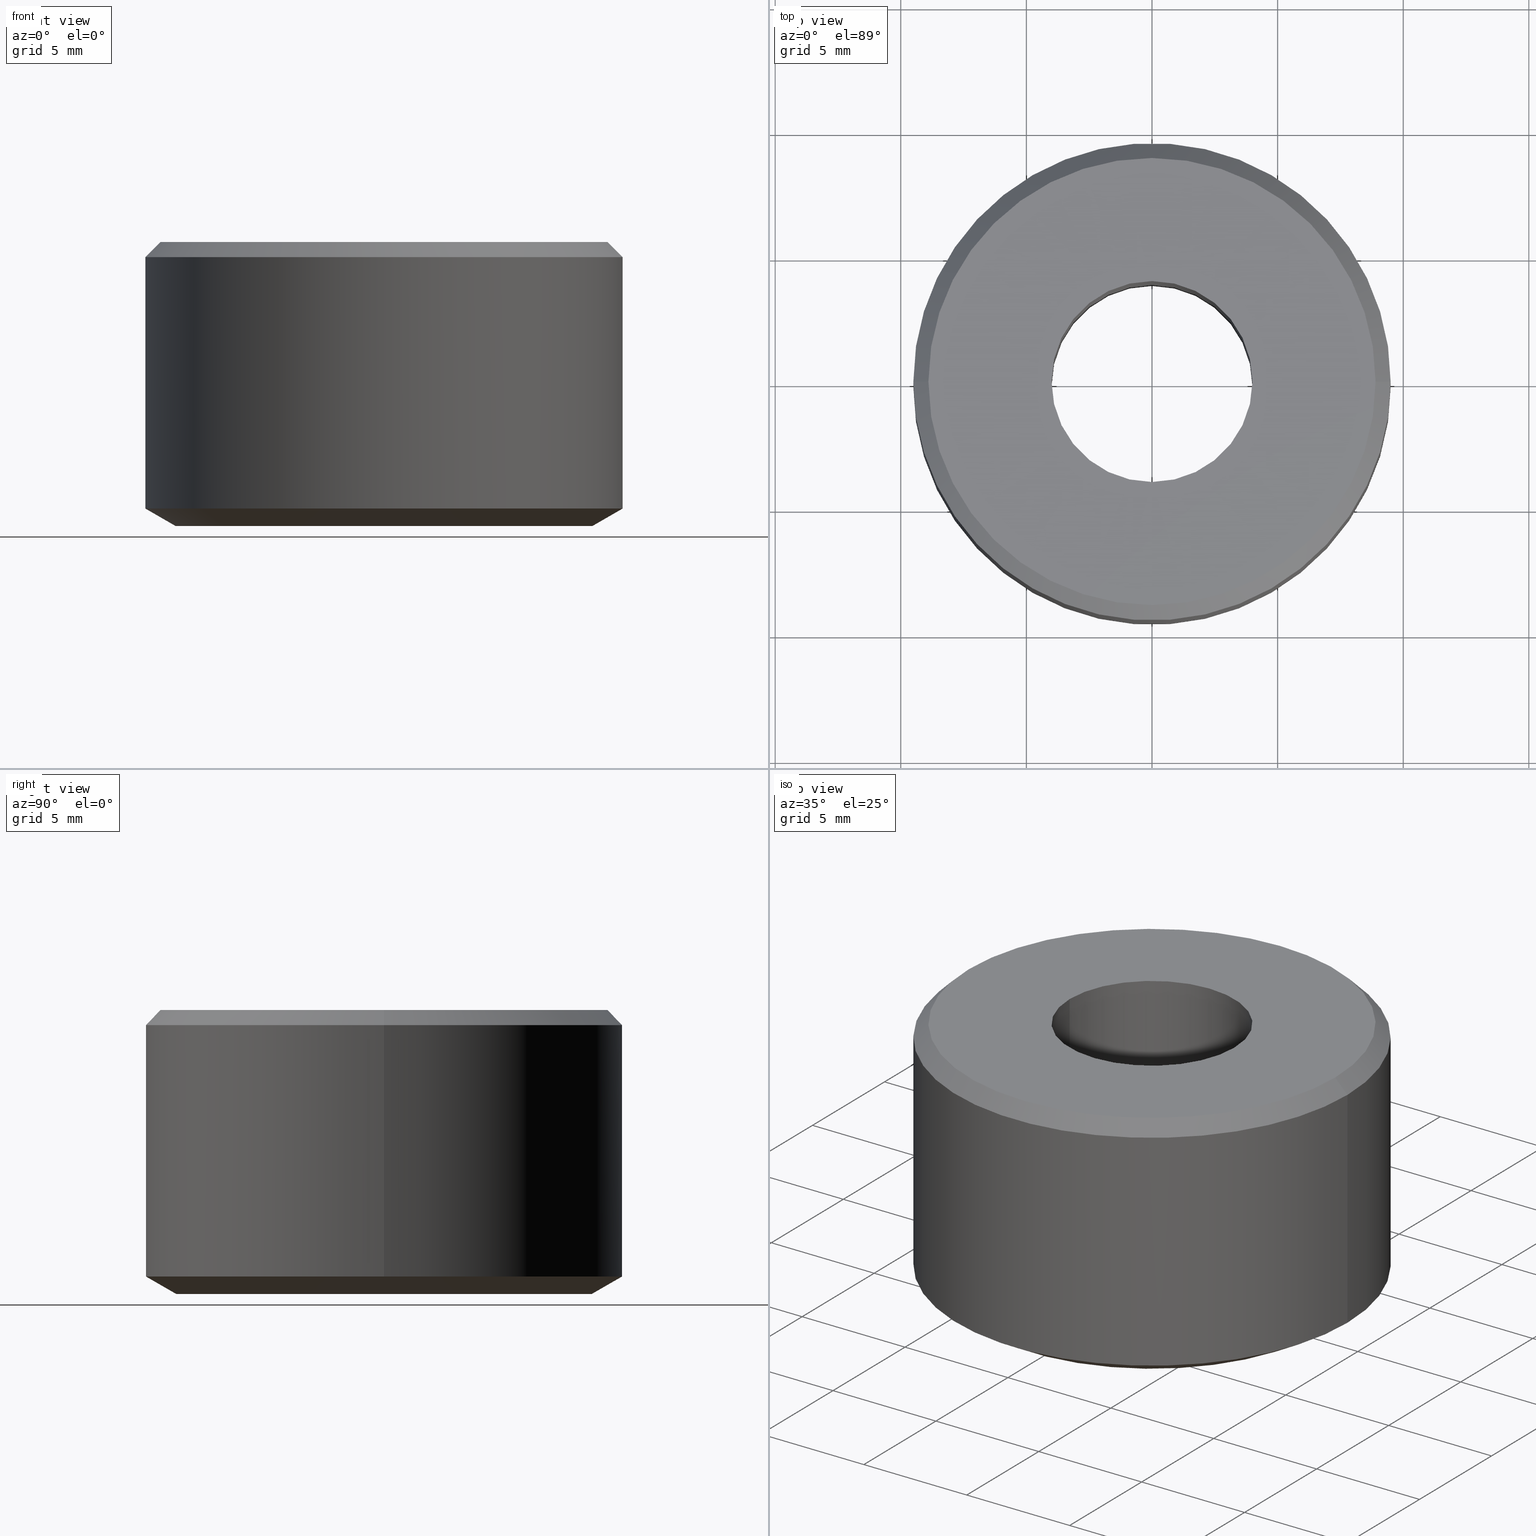
[diagram: canonical four-view strip — front | top / right | iso, engineering-drawing reading convention]
A machine part, canonical four-view strip (front | top / right | iso — engineering-drawing reading convention). The complete STEP part file that produces these views, byte-faithful:
ISO-10303-21;
HEADER;
FILE_DESCRIPTION (( 'STEP AP203' ),
    '1' );
FILE_NAME ('UM ER 11 HEX.STEP',
    '2019-04-22T06:55:22',
    ( '' ),
    ( '' ),
    'SwSTEP 2.0',
    'SolidWorks 2014',
    '' );
FILE_SCHEMA (( 'CONFIG_CONTROL_DESIGN' ));
ENDSEC;

DATA;
#1 = DIRECTION ( 'NONE',  ( 0.8660254037844379300, 0.0000000000000000000, 0.5000000000000011100 ) ) ;
#2 = EDGE_LOOP ( 'NONE', ( #124, #46 ) ) ;
#3 = EDGE_LOOP ( 'NONE', ( #123, #69, #293, #106 ) ) ;
#4 = APPROVAL_ROLE ( '' ) ;
#5 = FACE_OUTER_BOUND ( 'NONE', #291, .T. ) ;
#6 = CALENDAR_DATE ( 2019, 22, 4 ) ;
#7 = PERSON_AND_ORGANIZATION_ROLE ( 'design_supplier' ) ;
#8 = VERTEX_POINT ( 'NONE', #235 ) ;
#9 = VERTEX_POINT ( 'NONE', #67 ) ;
#10 = CARTESIAN_POINT ( 'NONE',  ( 0.0000000000000000000, 0.0000000000000000000, 0.6928203230271989800 ) ) ;
#11 = UNCERTAINTY_MEASURE_WITH_UNIT (LENGTH_MEASURE( 1.000000000000000100E-005 ), #279, 'distance_accuracy_value', 'NONE');
#12 = CC_DESIGN_PERSON_AND_ORGANIZATION_ASSIGNMENT ( #249, #92, ( #317 ) ) ;
#13 = CIRCLE ( 'NONE', #83, 8.900000000000249000 ) ;
#14 = ORIENTED_EDGE ( 'NONE', *, *, #114, .T. ) ;
#15 = AXIS2_PLACEMENT_3D ( 'NONE', #348, #104, #188 ) ;
#16 = ORIENTED_EDGE ( 'NONE', *, *, #230, .F. ) ;
#17 = ORIENTED_EDGE ( 'NONE', *, *, #301, .F. ) ;
#18 = DATE_AND_TIME ( #86, #171 ) ;
#19 = ORIENTED_EDGE ( 'NONE', *, *, #78, .F. ) ;
#20 = PRODUCT_DEFINITION ( 'UNKNOWN', '', #309, #325 ) ;
#21 = DIRECTION ( 'NONE',  ( 1.000000000000000000, 0.0000000000000000000, 0.0000000000000000000 ) ) ;
#22 = LINE ( 'NONE', #310, #302 ) ;
#23 = EDGE_CURVE ( 'NONE', #284, #342, #277, .T. ) ;
#24 = DIRECTION ( 'NONE',  ( -0.0000000000000000000, -0.0000000000000000000, 1.000000000000000000 ) ) ;
#25 = CC_DESIGN_APPROVAL ( #262, ( #20 ) ) ;
#26 = DATE_TIME_ROLE ( 'creation_date' ) ;
#27 = CARTESIAN_POINT ( 'NONE',  ( 0.0000000000000000000, 0.0000000000000000000, 10.69999999999993200 ) ) ;
#28 = APPROVAL_DATE_TIME ( #93, #262 ) ;
#29 = APPROVAL_ROLE ( '' ) ;
#30 = ADVANCED_FACE ( 'NONE', ( #128 ), #207, .T. ) ;
#31 = ORIENTED_EDGE ( 'NONE', *, *, #117, .T. ) ;
#32 = AXIS2_PLACEMENT_3D ( 'NONE', #145, #24, #48 ) ;
#33 = DIRECTION ( 'NONE',  ( 1.000000000000000000, 0.0000000000000000000, 0.0000000000000000000 ) ) ;
#34 = CIRCLE ( 'NONE', #43, 8.300000000000153500 ) ;
#35 = AXIS2_PLACEMENT_3D ( 'NONE', #333, #306, #204 ) ;
#36 = CONICAL_SURFACE ( 'NONE', #185, 9.500000000000008900, 0.7853981633974468400 ) ;
#37 = DIRECTION ( 'NONE',  ( -0.0000000000000000000, -0.0000000000000000000, 1.000000000000000000 ) ) ;
#38 = EDGE_CURVE ( 'NONE', #9, #276, #269, .T. ) ;
#39 = VERTEX_POINT ( 'NONE', #250 ) ;
#40 = VERTEX_POINT ( 'NONE', #340 ) ;
#41 = DIRECTION ( 'NONE',  ( -0.0000000000000000000, -0.0000000000000000000, 1.000000000000000000 ) ) ;
#42 = CONICAL_SURFACE ( 'NONE', #32, 9.500000000000008900, 1.047197551196596500 ) ;
#43 = AXIS2_PLACEMENT_3D ( 'NONE', #112, #137, #212 ) ;
#44 = DIRECTION ( 'NONE',  ( -1.000000000000000000, 0.0000000000000000000, 0.0000000000000000000 ) ) ;
#45 = CARTESIAN_POINT ( 'NONE',  ( -9.500000000000008900, 0.0000000000000000000, 10.69999999999993200 ) ) ;
#46 = ORIENTED_EDGE ( 'NONE', *, *, #245, .F. ) ;
#47 = EDGE_LOOP ( 'NONE', ( #108, #127, #59, #84 ) ) ;
#48 = DIRECTION ( 'NONE',  ( 1.000000000000000000, 0.0000000000000000000, 0.0000000000000000000 ) ) ;
#49 = LINE ( 'NONE', #326, #314 ) ;
#50 = DIRECTION ( 'NONE',  ( 1.000000000000000000, 0.0000000000000000000, 0.0000000000000000000 ) ) ;
#51 = EDGE_CURVE ( 'NONE', #39, #9, #344, .T. ) ;
#52 = ADVANCED_FACE ( 'NONE', ( #151 ), #329, .T. ) ;
#53 =( NAMED_UNIT ( * ) PLANE_ANGLE_UNIT ( ) SI_UNIT ( $, .RADIAN. ) );
#54 = CIRCLE ( 'NONE', #149, 4.000000000000000000 ) ;
#55 = APPROVAL ( #266, 'UNSPECIFIED' ) ;
#56 = CALENDAR_DATE ( 2019, 22, 4 ) ;
#57 = AXIS2_PLACEMENT_3D ( 'NONE', #122, #186, #98 ) ;
#58 = CARTESIAN_POINT ( 'NONE',  ( 9.500000000000008900, 0.0000000000000000000, 10.69999999999993200 ) ) ;
#59 = ORIENTED_EDGE ( 'NONE', *, *, #110, .T. ) ;
#60 = CIRCLE ( 'NONE', #103, 9.500000000000008900 ) ;
#61 = DATE_AND_TIME ( #141, #209 ) ;
#62 = AXIS2_PLACEMENT_3D ( 'NONE', #72, #136, #176 ) ;
#63 = PRODUCT_RELATED_PRODUCT_CATEGORY ( 'detail', '', ( #317 ) ) ;
#64 = ORIENTED_EDGE ( 'NONE', *, *, #308, .F. ) ;
#65 = DATE_TIME_ROLE ( 'classification_date' ) ;
#66 = VECTOR ( 'NONE', #237, 999.9999999999998900 ) ;
#67 = CARTESIAN_POINT ( 'NONE',  ( -8.900000000000249000, 0.0000000000000000000, 11.29999999999969200 ) ) ;
#68 = PERSON_AND_ORGANIZATION ( #160, #316 ) ;
#69 = ORIENTED_EDGE ( 'NONE', *, *, #166, .T. ) ;
#70 = ORIENTED_EDGE ( 'NONE', *, *, #240, .T. ) ;
#71 = EDGE_CURVE ( 'NONE', #40, #255, #140, .T. ) ;
#72 = CARTESIAN_POINT ( 'NONE',  ( 0.0000000000000000000, 0.0000000000000000000, 0.6928203230271989800 ) ) ;
#73 = CYLINDRICAL_SURFACE ( 'NONE', #143, 9.500000000000008900 ) ;
#74 = CARTESIAN_POINT ( 'NONE',  ( 0.0000000000000000000, 0.0000000000000000000, 54.19208278002274400 ) ) ;
#75 = APPLICATION_PROTOCOL_DEFINITION ( 'international standard', 'config_control_design', 1994, #88 ) ;
#76 = EDGE_LOOP ( 'NONE', ( #241, #292, #70, #327 ) ) ;
#77 = LOCAL_TIME ( 12, 25, 22.00000000000000000, #164 ) ;
#78 = EDGE_CURVE ( 'NONE', #8, #264, #213, .T. ) ;
#79 = ORIENTED_EDGE ( 'NONE', *, *, #328, .T. ) ;
#80 = DIRECTION ( 'NONE',  ( 1.000000000000000000, 0.0000000000000000000, 0.0000000000000000000 ) ) ;
#81 = CONICAL_SURFACE ( 'NONE', #62, 9.500000000000008900, 1.047197551196596500 ) ;
#82 = DIRECTION ( 'NONE',  ( -0.0000000000000000000, -0.0000000000000000000, 1.000000000000000000 ) ) ;
#83 = AXIS2_PLACEMENT_3D ( 'NONE', #148, #126, #50 ) ;
#84 = ORIENTED_EDGE ( 'NONE', *, *, #107, .F. ) ;
#85 = DIRECTION ( 'NONE',  ( 1.000000000000000000, 0.0000000000000000000, 0.0000000000000000000 ) ) ;
#86 = CALENDAR_DATE ( 2019, 22, 4 ) ;
#87 = ORIENTED_EDGE ( 'NONE', *, *, #78, .T. ) ;
#88 = APPLICATION_CONTEXT ( 'configuration controlled 3d designs of mechanical parts and assemblies' ) ;
#89 = VECTOR ( 'NONE', #232, 1000.000000000000000 ) ;
#90 = CARTESIAN_POINT ( 'NONE',  ( 0.0000000000000000000, 0.0000000000000000000, 11.29999999999969000 ) ) ;
#91 = AXIS2_PLACEMENT_3D ( 'NONE', #267, #239, #234 ) ;
#92 = PERSON_AND_ORGANIZATION_ROLE ( 'design_owner' ) ;
#93 = DATE_AND_TIME ( #180, #183 ) ;
#94 = ORIENTED_EDGE ( 'NONE', *, *, #51, .T. ) ;
#95 = EDGE_LOOP ( 'NONE', ( #324, #79, #192, #205 ) ) ;
#96 = AXIS2_PLACEMENT_3D ( 'NONE', #257, #102, #297 ) ;
#97 = FACE_OUTER_BOUND ( 'NONE', #95, .T. ) ;
#98 = DIRECTION ( 'NONE',  ( -1.000000000000000000, 0.0000000000000000000, -0.0000000000000000000 ) ) ;
#99 = FACE_OUTER_BOUND ( 'NONE', #2, .T. ) ;
#100 = DIRECTION ( 'NONE',  ( -0.0000000000000000000, -0.0000000000000000000, 1.000000000000000000 ) ) ;
#101 = AXIS2_PLACEMENT_3D ( 'NONE', #181, #178, #265 ) ;
#102 = DIRECTION ( 'NONE',  ( 0.0000000000000000000, 0.0000000000000000000, -1.000000000000000000 ) ) ;
#103 = AXIS2_PLACEMENT_3D ( 'NONE', #172, #116, #299 ) ;
#104 = DIRECTION ( 'NONE',  ( -0.0000000000000000000, -0.0000000000000000000, 1.000000000000000000 ) ) ;
#105 = ADVANCED_FACE ( 'NONE', ( #259, #5 ), #275, .F. ) ;
#106 = ORIENTED_EDGE ( 'NONE', *, *, #323, .F. ) ;
#107 = EDGE_CURVE ( 'NONE', #342, #284, #131, .T. ) ;
#108 = ORIENTED_EDGE ( 'NONE', *, *, #328, .F. ) ;
#109 = FACE_BOUND ( 'NONE', #272, .T. ) ;
#110 = EDGE_CURVE ( 'NONE', #154, #284, #202, .T. ) ;
#111 = PLANE ( 'NONE',  #57 ) ;
#112 = CARTESIAN_POINT ( 'NONE',  ( 0.0000000000000000000, 0.0000000000000000000, -2.706168622523819100E-013 ) ) ;
#113 = APPROVAL_PERSON_ORGANIZATION ( #190, #262, #29 ) ;
#114 = EDGE_CURVE ( 'NONE', #276, #288, #60, .T. ) ;
#115 = ORIENTED_EDGE ( 'NONE', *, *, #323, .T. ) ;
#116 = DIRECTION ( 'NONE',  ( -0.0000000000000000000, -0.0000000000000000000, 1.000000000000000000 ) ) ;
#117 = EDGE_CURVE ( 'NONE', #264, #8, #54, .T. ) ;
#118 = DIRECTION ( 'NONE',  ( -0.0000000000000000000, -0.0000000000000000000, 1.000000000000000000 ) ) ;
#119 = FACE_OUTER_BOUND ( 'NONE', #47, .T. ) ;
#120 = EDGE_LOOP ( 'NONE', ( #280, #17, #347, #14 ) ) ;
#121 =( GEOMETRIC_REPRESENTATION_CONTEXT ( 3 ) GLOBAL_UNCERTAINTY_ASSIGNED_CONTEXT ( ( #11 ) ) GLOBAL_UNIT_ASSIGNED_CONTEXT ( ( #279, #53, #337 ) ) REPRESENTATION_CONTEXT ( 'NONE', 'WORKASPACE' ) );
#122 = CARTESIAN_POINT ( 'NONE',  ( 0.0000000000000000000, 0.0000000000000000000, -2.682323255395181400E-013 ) ) ;
#123 = ORIENTED_EDGE ( 'NONE', *, *, #117, .F. ) ;
#124 = ORIENTED_EDGE ( 'NONE', *, *, #157, .F. ) ;
#125 = CARTESIAN_POINT ( 'NONE',  ( 9.500000000000008900, 0.0000000000000000000, 0.6928203230271989800 ) ) ;
#126 = DIRECTION ( 'NONE',  ( -0.0000000000000000000, -0.0000000000000000000, 1.000000000000000000 ) ) ;
#127 = ORIENTED_EDGE ( 'NONE', *, *, #245, .T. ) ;
#128 = FACE_OUTER_BOUND ( 'NONE', #120, .T. ) ;
#129 = DIRECTION ( 'NONE',  ( 0.7071067811865464600, 8.659560562354921800E-017, -0.7071067811865486800 ) ) ;
#130 = CC_DESIGN_APPROVAL ( #55, ( #155 ) ) ;
#131 = CIRCLE ( 'NONE', #296, 9.500000000000008900 ) ;
#132 = LOCAL_TIME ( 12, 25, 22.00000000000000000, #203 ) ;
#133 = CC_DESIGN_DATE_AND_TIME_ASSIGNMENT ( #18, #26, ( #20 ) ) ;
#134 = APPLICATION_PROTOCOL_DEFINITION ( 'international standard', 'config_control_design', 1994, #303 ) ;
#135 = EDGE_CURVE ( 'NONE', #255, #40, #252, .T. ) ;
#136 = DIRECTION ( 'NONE',  ( -0.0000000000000000000, -0.0000000000000000000, 1.000000000000000000 ) ) ;
#137 = DIRECTION ( 'NONE',  ( -0.0000000000000000000, -0.0000000000000000000, 1.000000000000000000 ) ) ;
#138 = ADVANCED_FACE ( 'NONE', ( #119 ), #42, .T. ) ;
#139 = ORIENTED_EDGE ( 'NONE', *, *, #301, .T. ) ;
#140 = CIRCLE ( 'NONE', #191, 4.000000000000000000 ) ;
#141 = CALENDAR_DATE ( 2019, 22, 4 ) ;
#142 = DIRECTION ( 'NONE',  ( 1.000000000000000000, 0.0000000000000000000, 0.0000000000000000000 ) ) ;
#143 = AXIS2_PLACEMENT_3D ( 'NONE', #254, #100, #21 ) ;
#144 = FACE_OUTER_BOUND ( 'NONE', #3, .T. ) ;
#145 = CARTESIAN_POINT ( 'NONE',  ( 0.0000000000000000000, 0.0000000000000000000, 0.6928203230271989800 ) ) ;
#146 = EDGE_LOOP ( 'NONE', ( #147, #281 ) ) ;
#147 = ORIENTED_EDGE ( 'NONE', *, *, #71, .F. ) ;
#148 = CARTESIAN_POINT ( 'NONE',  ( 0.0000000000000000000, 0.0000000000000000000, 11.29999999999969200 ) ) ;
#149 = AXIS2_PLACEMENT_3D ( 'NONE', #179, #197, #286 ) ;
#150 = CC_DESIGN_DATE_AND_TIME_ASSIGNMENT ( #61, #65, ( #155 ) ) ;
#151 = FACE_OUTER_BOUND ( 'NONE', #221, .T. ) ;
#152 = PERSON_AND_ORGANIZATION_ROLE ( 'classification_officer' ) ;
#153 = PERSON_AND_ORGANIZATION ( #160, #316 ) ;
#154 = VERTEX_POINT ( 'NONE', #184 ) ;
#155 = SECURITY_CLASSIFICATION ( '', '', #336 ) ;
#156 = AXIS2_PLACEMENT_3D ( 'NONE', #10, #270, #194 ) ;
#157 = EDGE_CURVE ( 'NONE', #154, #228, #187, .T. ) ;
#158 = DIRECTION ( 'NONE',  ( -0.0000000000000000000, -0.0000000000000000000, 1.000000000000000000 ) ) ;
#159 = CARTESIAN_POINT ( 'NONE',  ( -4.000000000000000000, 4.898587196589412800E-016, -2.706168622523819100E-013 ) ) ;
#160 = PERSON ( 'UNSPECIFIED', 'UNSPECIFIED', 'UNSPECIFIED', ('UNSPECIFIED'), ('UNSPECIFIED'), ('UNSPECIFIED') ) ;
#161 = ORIENTED_EDGE ( 'NONE', *, *, #166, .F. ) ;
#162 = DIRECTION ( 'NONE',  ( 1.000000000000000000, 0.0000000000000000000, 0.0000000000000000000 ) ) ;
#163 = ORIENTED_EDGE ( 'NONE', *, *, #308, .T. ) ;
#164 = COORDINATED_UNIVERSAL_TIME_OFFSET ( 5, 30, .AHEAD. ) ;
#165 = CLOSED_SHELL ( 'NONE', ( #256, #343, #170, #52, #313, #30, #105, #238, #214, #138 ) ) ;
#166 = EDGE_CURVE ( 'NONE', #264, #255, #49, .T. ) ;
#167 = DIRECTION ( 'NONE',  ( -1.000000000000000000, 0.0000000000000000000, -0.0000000000000000000 ) ) ;
#168 = LINE ( 'NONE', #243, #224 ) ;
#169 = AXIS2_PLACEMENT_3D ( 'NONE', #74, #158, #162 ) ;
#170 = ADVANCED_FACE ( 'NONE', ( #307 ), #36, .T. ) ;
#171 = LOCAL_TIME ( 12, 25, 22.00000000000000000, #229 ) ;
#172 = CARTESIAN_POINT ( 'NONE',  ( 0.0000000000000000000, 0.0000000000000000000, 10.69999999999993200 ) ) ;
#173 = ORIENTED_EDGE ( 'NONE', *, *, #23, .T. ) ;
#174 = CC_DESIGN_PERSON_AND_ORGANIZATION_ASSIGNMENT ( #300, #261, ( #20 ) ) ;
#175 = CYLINDRICAL_SURFACE ( 'NONE', #101, 4.000000000000000000 ) ;
#176 = DIRECTION ( 'NONE',  ( 1.000000000000000000, 0.0000000000000000000, 0.0000000000000000000 ) ) ;
#177 = CARTESIAN_POINT ( 'NONE',  ( 0.0000000000000000000, 0.0000000000000000000, -2.706168622523819100E-013 ) ) ;
#178 = DIRECTION ( 'NONE',  ( -0.0000000000000000000, -0.0000000000000000000, 1.000000000000000000 ) ) ;
#179 = CARTESIAN_POINT ( 'NONE',  ( 0.0000000000000000000, 0.0000000000000000000, -2.706168622523819100E-013 ) ) ;
#180 = CALENDAR_DATE ( 2019, 22, 4 ) ;
#181 = CARTESIAN_POINT ( 'NONE',  ( 0.0000000000000000000, 0.0000000000000000000, 54.19208278002274400 ) ) ;
#182 = VECTOR ( 'NONE', #82, 1000.000000000000000 ) ;
#183 = LOCAL_TIME ( 12, 25, 22.00000000000000000, #195 ) ;
#184 = CARTESIAN_POINT ( 'NONE',  ( 8.300000000000153500, 0.0000000000000000000, -2.706168622523819100E-013 ) ) ;
#185 = AXIS2_PLACEMENT_3D ( 'NONE', #27, #226, #44 ) ;
#186 = DIRECTION ( 'NONE',  ( 0.0000000000000000000, 0.0000000000000000000, -1.000000000000000000 ) ) ;
#187 = CIRCLE ( 'NONE', #294, 8.300000000000153500 ) ;
#188 = DIRECTION ( 'NONE',  ( 1.000000000000000000, 0.0000000000000000000, 0.0000000000000000000 ) ) ;
#189 = AXIS2_PLACEMENT_3D ( 'NONE', #90, #311, #167 ) ;
#190 = PERSON_AND_ORGANIZATION ( #160, #316 ) ;
#191 = AXIS2_PLACEMENT_3D ( 'NONE', #322, #118, #220 ) ;
#192 = ORIENTED_EDGE ( 'NONE', *, *, #23, .F. ) ;
#193 = DIRECTION ( 'NONE',  ( 1.000000000000000000, 0.0000000000000000000, 0.0000000000000000000 ) ) ;
#194 = DIRECTION ( 'NONE',  ( 1.000000000000000000, 0.0000000000000000000, 0.0000000000000000000 ) ) ;
#195 = COORDINATED_UNIVERSAL_TIME_OFFSET ( 5, 30, .AHEAD. ) ;
#196 = CC_DESIGN_SECURITY_CLASSIFICATION ( #155, ( #309 ) ) ;
#197 = DIRECTION ( 'NONE',  ( -0.0000000000000000000, -0.0000000000000000000, 1.000000000000000000 ) ) ;
#198 = CARTESIAN_POINT ( 'NONE',  ( -9.500000000000008900, 1.163414459189986700E-015, 54.19208278002274400 ) ) ;
#199 = CARTESIAN_POINT ( 'NONE',  ( -9.500000000000008900, 1.163414459189986700E-015, 0.6928203230271989800 ) ) ;
#200 = EDGE_LOOP ( 'NONE', ( #16, #251, #163, #217 ) ) ;
#201 = APPROVAL ( #330, 'UNSPECIFIED' ) ;
#202 = LINE ( 'NONE', #320, #319 ) ;
#203 = COORDINATED_UNIVERSAL_TIME_OFFSET ( 5, 30, .AHEAD. ) ;
#204 = DIRECTION ( 'NONE',  ( 1.000000000000000000, 0.0000000000000000000, 0.0000000000000000000 ) ) ;
#205 = ORIENTED_EDGE ( 'NONE', *, *, #110, .F. ) ;
#206 = DIRECTION ( 'NONE',  ( -0.0000000000000000000, -0.0000000000000000000, 1.000000000000000000 ) ) ;
#207 = CONICAL_SURFACE ( 'NONE', #96, 9.500000000000008900, 0.7853981633974468400 ) ;
#208 = CARTESIAN_POINT ( 'NONE',  ( -9.500000000000008900, 1.163414459189986700E-015, 10.69999999999993200 ) ) ;
#209 = LOCAL_TIME ( 12, 25, 22.00000000000000000, #271 ) ;
#210 = ORIENTED_EDGE ( 'NONE', *, *, #71, .T. ) ;
#211 = SHAPE_DEFINITION_REPRESENTATION ( #227, #244 ) ;
#212 = DIRECTION ( 'NONE',  ( 1.000000000000000000, 0.0000000000000000000, 0.0000000000000000000 ) ) ;
#213 = CIRCLE ( 'NONE', #91, 4.000000000000000000 ) ;
#214 = ADVANCED_FACE ( 'NONE', ( #109, #99 ), #111, .T. ) ;
#215 = APPROVAL_DATE_TIME ( #278, #201 ) ;
#216 = EDGE_LOOP ( 'NONE', ( #161, #19, #115, #210 ) ) ;
#217 = ORIENTED_EDGE ( 'NONE', *, *, #114, .F. ) ;
#218 = DIRECTION ( 'NONE',  ( -0.0000000000000000000, -0.0000000000000000000, 1.000000000000000000 ) ) ;
#219 = FACE_OUTER_BOUND ( 'NONE', #200, .T. ) ;
#220 = DIRECTION ( 'NONE',  ( 1.000000000000000000, 0.0000000000000000000, 0.0000000000000000000 ) ) ;
#221 = EDGE_LOOP ( 'NONE', ( #173, #231, #338, #64 ) ) ;
#222 = APPROVAL_PERSON_ORGANIZATION ( #289, #201, #248 ) ;
#223 = AXIS2_PLACEMENT_3D ( 'NONE', #315, #218, #193 ) ;
#224 = VECTOR ( 'NONE', #129, 999.9999999999998900 ) ;
#225 = AXIS2_PLACEMENT_3D ( 'NONE', #287, #312, #80 ) ;
#226 = DIRECTION ( 'NONE',  ( 0.0000000000000000000, 0.0000000000000000000, -1.000000000000000000 ) ) ;
#227 = PRODUCT_DEFINITION_SHAPE ( 'NONE', 'NONE',  #20 ) ;
#228 = VERTEX_POINT ( 'NONE', #345 ) ;
#229 = COORDINATED_UNIVERSAL_TIME_OFFSET ( 5, 30, .AHEAD. ) ;
#230 = EDGE_CURVE ( 'NONE', #342, #276, #242, .T. ) ;
#231 = ORIENTED_EDGE ( 'NONE', *, *, #230, .T. ) ;
#232 = DIRECTION ( 'NONE',  ( -0.0000000000000000000, -0.0000000000000000000, 1.000000000000000000 ) ) ;
#233 = CIRCLE ( 'NONE', #225, 9.500000000000008900 ) ;
#234 = DIRECTION ( 'NONE',  ( 1.000000000000000000, 0.0000000000000000000, 0.0000000000000000000 ) ) ;
#235 = CARTESIAN_POINT ( 'NONE',  ( 4.000000000000000000, 0.0000000000000000000, -2.706168622523819100E-013 ) ) ;
#236 = CC_DESIGN_PERSON_AND_ORGANIZATION_ASSIGNMENT ( #153, #247, ( #309 ) ) ;
#237 = DIRECTION ( 'NONE',  ( -0.7071067811865464600, 0.0000000000000000000, -0.7071067811865486800 ) ) ;
#238 = ADVANCED_FACE ( 'NONE', ( #246 ), #175, .F. ) ;
#239 = DIRECTION ( 'NONE',  ( -0.0000000000000000000, -0.0000000000000000000, 1.000000000000000000 ) ) ;
#240 = EDGE_CURVE ( 'NONE', #288, #276, #233, .T. ) ;
#241 = ORIENTED_EDGE ( 'NONE', *, *, #51, .F. ) ;
#242 = LINE ( 'NONE', #198, #182 ) ;
#243 = CARTESIAN_POINT ( 'NONE',  ( 9.500000000000008900, 1.163414459189986700E-015, 10.69999999999993200 ) ) ;
#244 = ADVANCED_BREP_SHAPE_REPRESENTATION ( 'UM ER 11 HEX', ( #298, #35 ), #121 ) ;
#245 = EDGE_CURVE ( 'NONE', #228, #154, #34, .T. ) ;
#246 = FACE_OUTER_BOUND ( 'NONE', #216, .T. ) ;
#247 = PERSON_AND_ORGANIZATION_ROLE ( 'creator' ) ;
#248 = APPROVAL_ROLE ( '' ) ;
#249 = PERSON_AND_ORGANIZATION ( #160, #316 ) ;
#250 = CARTESIAN_POINT ( 'NONE',  ( 8.900000000000249000, 1.126675055215580800E-015, 11.29999999999969200 ) ) ;
#251 = ORIENTED_EDGE ( 'NONE', *, *, #107, .T. ) ;
#252 = CIRCLE ( 'NONE', #349, 4.000000000000000000 ) ;
#253 = APPROVAL_DATE_TIME ( #321, #55 ) ;
#254 = CARTESIAN_POINT ( 'NONE',  ( 0.0000000000000000000, 0.0000000000000000000, 54.19208278002274400 ) ) ;
#255 = VERTEX_POINT ( 'NONE', #258 ) ;
#256 = ADVANCED_FACE ( 'NONE', ( #97 ), #81, .T. ) ;
#257 = CARTESIAN_POINT ( 'NONE',  ( 0.0000000000000000000, 0.0000000000000000000, 10.69999999999993200 ) ) ;
#258 = CARTESIAN_POINT ( 'NONE',  ( -4.000000000000000000, 4.898587196589412800E-016, 11.29999999999969200 ) ) ;
#259 = FACE_BOUND ( 'NONE', #146, .T. ) ;
#260 = APPROVAL_PERSON_ORGANIZATION ( #331, #55, #4 ) ;
#261 = PERSON_AND_ORGANIZATION_ROLE ( 'creator' ) ;
#262 = APPROVAL ( #274, 'UNSPECIFIED' ) ;
#263 = CC_DESIGN_PERSON_AND_ORGANIZATION_ASSIGNMENT ( #346, #152, ( #155 ) ) ;
#264 = VERTEX_POINT ( 'NONE', #159 ) ;
#265 = DIRECTION ( 'NONE',  ( 1.000000000000000000, 0.0000000000000000000, 0.0000000000000000000 ) ) ;
#266 = APPROVAL_STATUS ( 'not_yet_approved' ) ;
#267 = CARTESIAN_POINT ( 'NONE',  ( 0.0000000000000000000, 0.0000000000000000000, -2.706168622523819100E-013 ) ) ;
#268 = CARTESIAN_POINT ( 'NONE',  ( 0.0000000000000000000, 0.0000000000000000000, 0.6928203230271989800 ) ) ;
#269 = LINE ( 'NONE', #45, #66 ) ;
#270 = DIRECTION ( 'NONE',  ( -0.0000000000000000000, -0.0000000000000000000, 1.000000000000000000 ) ) ;
#271 = COORDINATED_UNIVERSAL_TIME_OFFSET ( 5, 30, .AHEAD. ) ;
#272 = EDGE_LOOP ( 'NONE', ( #87, #31 ) ) ;
#273 = VECTOR ( 'NONE', #285, 1000.000000000000100 ) ;
#274 = APPROVAL_STATUS ( 'not_yet_approved' ) ;
#275 = PLANE ( 'NONE',  #189 ) ;
#276 = VERTEX_POINT ( 'NONE', #208 ) ;
#277 = CIRCLE ( 'NONE', #156, 9.500000000000008900 ) ;
#278 = DATE_AND_TIME ( #6, #77 ) ;
#279 =( LENGTH_UNIT ( ) NAMED_UNIT ( * ) SI_UNIT ( .MILLI., .METRE. ) );
#280 = ORIENTED_EDGE ( 'NONE', *, *, #305, .F. ) ;
#281 = ORIENTED_EDGE ( 'NONE', *, *, #135, .F. ) ;
#282 = CARTESIAN_POINT ( 'NONE',  ( 0.0000000000000000000, 0.0000000000000000000, 11.29999999999969200 ) ) ;
#283 = LINE ( 'NONE', #199, #273 ) ;
#284 = VERTEX_POINT ( 'NONE', #125 ) ;
#285 = DIRECTION ( 'NONE',  ( -0.8660254037844379300, 1.060575238724906100E-016, 0.5000000000000011100 ) ) ;
#286 = DIRECTION ( 'NONE',  ( 1.000000000000000000, 0.0000000000000000000, 0.0000000000000000000 ) ) ;
#287 = CARTESIAN_POINT ( 'NONE',  ( 0.0000000000000000000, 0.0000000000000000000, 10.69999999999993200 ) ) ;
#288 = VERTEX_POINT ( 'NONE', #58 ) ;
#289 = PERSON_AND_ORGANIZATION ( #160, #316 ) ;
#290 = CC_DESIGN_APPROVAL ( #201, ( #309 ) ) ;
#291 = EDGE_LOOP ( 'NONE', ( #139, #94 ) ) ;
#292 = ORIENTED_EDGE ( 'NONE', *, *, #305, .T. ) ;
#293 = ORIENTED_EDGE ( 'NONE', *, *, #135, .T. ) ;
#294 = AXIS2_PLACEMENT_3D ( 'NONE', #177, #206, #85 ) ;
#295 = LINE ( 'NONE', #304, #89 ) ;
#296 = AXIS2_PLACEMENT_3D ( 'NONE', #268, #341, #33 ) ;
#297 = DIRECTION ( 'NONE',  ( -1.000000000000000000, 0.0000000000000000000, 0.0000000000000000000 ) ) ;
#298 = MANIFOLD_SOLID_BREP ( 'Revolve1', #165 ) ;
#299 = DIRECTION ( 'NONE',  ( 1.000000000000000000, 0.0000000000000000000, 0.0000000000000000000 ) ) ;
#300 = PERSON_AND_ORGANIZATION ( #160, #316 ) ;
#301 = EDGE_CURVE ( 'NONE', #9, #39, #13, .T. ) ;
#302 = VECTOR ( 'NONE', #335, 1000.000000000000000 ) ;
#303 = APPLICATION_CONTEXT ( 'configuration controlled 3d designs of mechanical parts and assemblies' ) ;
#304 = CARTESIAN_POINT ( 'NONE',  ( 4.000000000000000000, 0.0000000000000000000, 54.19208278002274400 ) ) ;
#305 = EDGE_CURVE ( 'NONE', #39, #288, #168, .T. ) ;
#306 = DIRECTION ( 'NONE',  ( 0.0000000000000000000, 0.0000000000000000000, 1.000000000000000000 ) ) ;
#307 = FACE_OUTER_BOUND ( 'NONE', #76, .T. ) ;
#308 = EDGE_CURVE ( 'NONE', #284, #288, #22, .T. ) ;
#309 = PRODUCT_DEFINITION_FORMATION_WITH_SPECIFIED_SOURCE ( 'ANY', '', #317, .NOT_KNOWN. ) ;
#310 = CARTESIAN_POINT ( 'NONE',  ( 9.500000000000008900, 0.0000000000000000000, 54.19208278002274400 ) ) ;
#311 = DIRECTION ( 'NONE',  ( 0.0000000000000000000, 0.0000000000000000000, -1.000000000000000000 ) ) ;
#312 = DIRECTION ( 'NONE',  ( -0.0000000000000000000, -0.0000000000000000000, 1.000000000000000000 ) ) ;
#313 = ADVANCED_FACE ( 'NONE', ( #219 ), #73, .T. ) ;
#314 = VECTOR ( 'NONE', #37, 1000.000000000000000 ) ;
#315 = CARTESIAN_POINT ( 'NONE',  ( 0.0000000000000000000, 0.0000000000000000000, 54.19208278002274400 ) ) ;
#316 = ORGANIZATION ( 'UNSPECIFIED', 'UNSPECIFIED', '' ) ;
#317 = PRODUCT ( 'UM ER 11 HEX', 'UM ER 11 HEX', '', ( #318 ) ) ;
#318 = MECHANICAL_CONTEXT ( 'NONE', #303, 'mechanical' ) ;
#319 = VECTOR ( 'NONE', #1, 1000.000000000000100 ) ;
#320 = CARTESIAN_POINT ( 'NONE',  ( 9.500000000000008900, 0.0000000000000000000, 0.6928203230271989800 ) ) ;
#321 = DATE_AND_TIME ( #56, #132 ) ;
#322 = CARTESIAN_POINT ( 'NONE',  ( 0.0000000000000000000, 0.0000000000000000000, 11.29999999999969200 ) ) ;
#323 = EDGE_CURVE ( 'NONE', #8, #40, #295, .T. ) ;
#324 = ORIENTED_EDGE ( 'NONE', *, *, #157, .T. ) ;
#325 = DESIGN_CONTEXT ( 'detailed design', #88, 'design' ) ;
#326 = CARTESIAN_POINT ( 'NONE',  ( -4.000000000000000000, 4.898587196589412800E-016, 54.19208278002274400 ) ) ;
#327 = ORIENTED_EDGE ( 'NONE', *, *, #38, .F. ) ;
#328 = EDGE_CURVE ( 'NONE', #228, #342, #283, .T. ) ;
#329 = CYLINDRICAL_SURFACE ( 'NONE', #223, 9.500000000000008900 ) ;
#330 = APPROVAL_STATUS ( 'not_yet_approved' ) ;
#331 = PERSON_AND_ORGANIZATION ( #160, #316 ) ;
#332 = CARTESIAN_POINT ( 'NONE',  ( -9.500000000000008900, 1.163414459189986700E-015, 0.6928203230271989800 ) ) ;
#333 = CARTESIAN_POINT ( 'NONE',  ( 0.0000000000000000000, 0.0000000000000000000, 0.0000000000000000000 ) ) ;
#334 = CYLINDRICAL_SURFACE ( 'NONE', #169, 4.000000000000000000 ) ;
#335 = DIRECTION ( 'NONE',  ( -0.0000000000000000000, -0.0000000000000000000, 1.000000000000000000 ) ) ;
#336 = SECURITY_CLASSIFICATION_LEVEL ( 'unclassified' ) ;
#337 =( NAMED_UNIT ( * ) SI_UNIT ( $, .STERADIAN. ) SOLID_ANGLE_UNIT ( ) );
#338 = ORIENTED_EDGE ( 'NONE', *, *, #240, .F. ) ;
#339 = CC_DESIGN_PERSON_AND_ORGANIZATION_ASSIGNMENT ( #68, #7, ( #309 ) ) ;
#340 = CARTESIAN_POINT ( 'NONE',  ( 4.000000000000000000, 0.0000000000000000000, 11.29999999999969200 ) ) ;
#341 = DIRECTION ( 'NONE',  ( -0.0000000000000000000, -0.0000000000000000000, 1.000000000000000000 ) ) ;
#342 = VERTEX_POINT ( 'NONE', #332 ) ;
#343 = ADVANCED_FACE ( 'NONE', ( #144 ), #334, .F. ) ;
#344 = CIRCLE ( 'NONE', #15, 8.900000000000249000 ) ;
#345 = CARTESIAN_POINT ( 'NONE',  ( -8.300000000000153500, 1.089935651241154000E-015, -2.706168622523819100E-013 ) ) ;
#346 = PERSON_AND_ORGANIZATION ( #160, #316 ) ;
#347 = ORIENTED_EDGE ( 'NONE', *, *, #38, .T. ) ;
#348 = CARTESIAN_POINT ( 'NONE',  ( 0.0000000000000000000, 0.0000000000000000000, 11.29999999999969200 ) ) ;
#349 = AXIS2_PLACEMENT_3D ( 'NONE', #282, #41, #142 ) ;
ENDSEC;
END-ISO-10303-21;
